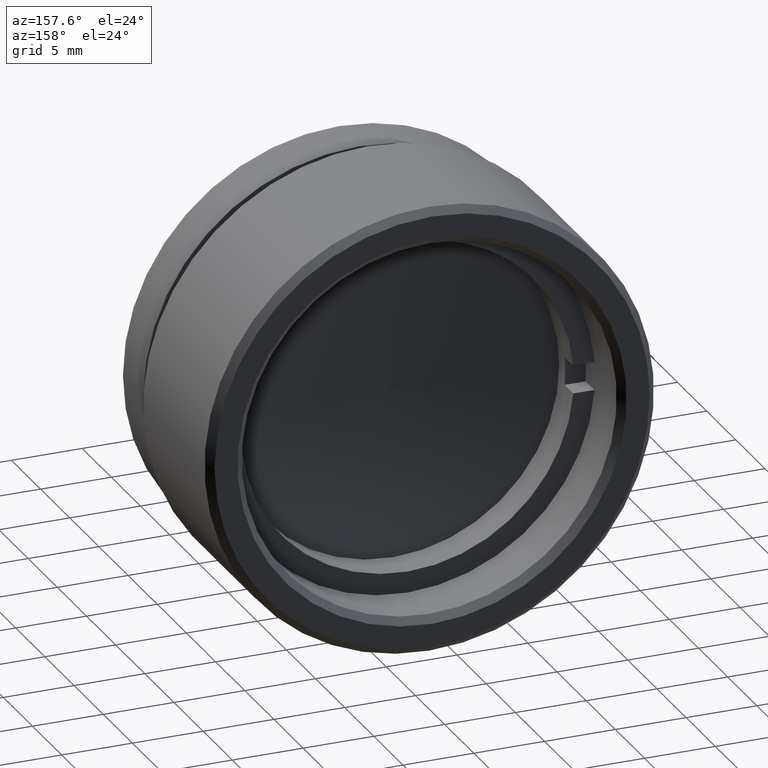
[diagram: clean part render]
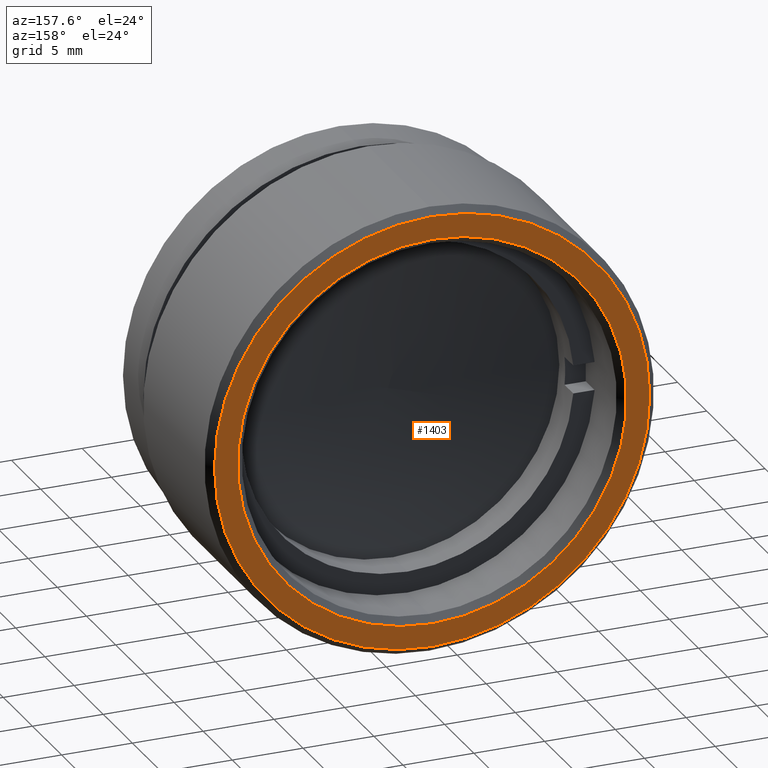
[diagram: same view with one face highlighted and labeled with its STEP entity id]
A machine part, auxiliary view. The second image highlights one B-rep face of the part: STEP entity #1403.
In plain terms, the highlighted planar face has unit normal (-0, 1, 0).
Its self-contained STEP definition (entity closure, byte-faithful):
#42 = CARTESIAN_POINT ( 'NONE',  ( -62.96855859389910393, 20.65316592187942035, 19.92647029529263492 ) ) ;
#43 = EDGE_LOOP ( 'NONE', ( #354, #806 ) ) ;
#47 = EDGE_CURVE ( 'NONE', #1219, #989, #617, .T. ) ;
#101 = CARTESIAN_POINT ( 'NONE',  ( -62.96855859389910393, 20.65316592187942035, 19.92647029529263492 ) ) ;
#118 = ORIENTED_EDGE ( 'NONE', *, *, #274, .T. ) ;
#119 = DIRECTION ( 'NONE',  ( 0.000000000000000000, 0.000000000000000000, 1.000000000000000000 ) ) ;
#250 = AXIS2_PLACEMENT_3D ( 'NONE', #1060, #1312, #462 ) ;
#264 = CIRCLE ( 'NONE', #1246, 13.75000000000000178 ) ;
#274 = EDGE_CURVE ( 'NONE', #962, #1479, #264, .T. ) ;
#275 = DIRECTION ( 'NONE',  ( 0.000000000000000000, 1.000000000000000000, 0.000000000000000000 ) ) ;
#311 = CARTESIAN_POINT ( 'NONE',  ( -62.96855859389910393, 20.65316592187942035, 19.92647029529263492 ) ) ;
#354 = ORIENTED_EDGE ( 'NONE', *, *, #662, .T. ) ;
#358 = CARTESIAN_POINT ( 'NONE',  ( -62.96855859389910393, 20.65316592187942035, 4.551470295292635804 ) ) ;
#372 = AXIS2_PLACEMENT_3D ( 'NONE', #848, #275, #1433 ) ;
#386 = DIRECTION ( 'NONE',  ( 0.000000000000000000, 0.000000000000000000, 1.000000000000000000 ) ) ;
#391 = AXIS2_PLACEMENT_3D ( 'NONE', #311, #1480, #119 ) ;
#398 = CARTESIAN_POINT ( 'NONE',  ( -62.96855859389910393, 20.65316592187942035, 33.67647029529263847 ) ) ;
#462 = DIRECTION ( 'NONE',  ( 1.000000000000000000, 0.000000000000000000, 0.000000000000000000 ) ) ;
#501 = DIRECTION ( 'NONE',  ( 0.000000000000000000, -1.000000000000000000, 0.000000000000000000 ) ) ;
#596 = CIRCLE ( 'NONE', #1455, 13.75000000000000178 ) ;
#617 = CIRCLE ( 'NONE', #391, 15.37500000000000355 ) ;
#662 = EDGE_CURVE ( 'NONE', #989, #1219, #921, .T. ) ;
#695 = EDGE_CURVE ( 'NONE', #1479, #962, #596, .T. ) ;
#717 = FACE_BOUND ( 'NONE', #1460, .T. ) ;
#806 = ORIENTED_EDGE ( 'NONE', *, *, #47, .T. ) ;
#825 = CARTESIAN_POINT ( 'NONE',  ( -62.96855859389910393, 20.65316592187942035, 6.176470295292635804 ) ) ;
#845 = PLANE ( 'NONE',  #250 ) ;
#848 = CARTESIAN_POINT ( 'NONE',  ( -62.96855859389910393, 20.65316592187942035, 19.92647029529263492 ) ) ;
#921 = CIRCLE ( 'NONE', #372, 15.37500000000000355 ) ;
#962 = VERTEX_POINT ( 'NONE', #825 ) ;
#989 = VERTEX_POINT ( 'NONE', #358 ) ;
#1060 = CARTESIAN_POINT ( 'NONE',  ( -47.09355859389910393, 20.65316592187942035, 19.92647029529263492 ) ) ;
#1139 = CARTESIAN_POINT ( 'NONE',  ( -62.96855859389910393, 20.65316592187942035, 35.30147029529263847 ) ) ;
#1158 = DIRECTION ( 'NONE',  ( 0.000000000000000000, -1.000000000000000000, 0.000000000000000000 ) ) ;
#1219 = VERTEX_POINT ( 'NONE', #1139 ) ;
#1246 = AXIS2_PLACEMENT_3D ( 'NONE', #101, #1158, #1392 ) ;
#1312 = DIRECTION ( 'NONE',  ( -0.000000000000000000, 1.000000000000000000, 0.000000000000000000 ) ) ;
#1392 = DIRECTION ( 'NONE',  ( 0.000000000000000000, 0.000000000000000000, 1.000000000000000000 ) ) ;
#1403 = ADVANCED_FACE ( 'NONE', ( #1414, #717 ), #845, .T. ) ;
#1414 = FACE_OUTER_BOUND ( 'NONE', #43, .T. ) ;
#1433 = DIRECTION ( 'NONE',  ( 0.000000000000000000, 0.000000000000000000, 1.000000000000000000 ) ) ;
#1455 = AXIS2_PLACEMENT_3D ( 'NONE', #42, #501, #386 ) ;
#1460 = EDGE_LOOP ( 'NONE', ( #1512, #118 ) ) ;
#1479 = VERTEX_POINT ( 'NONE', #398 ) ;
#1480 = DIRECTION ( 'NONE',  ( 0.000000000000000000, 1.000000000000000000, 0.000000000000000000 ) ) ;
#1512 = ORIENTED_EDGE ( 'NONE', *, *, #695, .T. ) ;